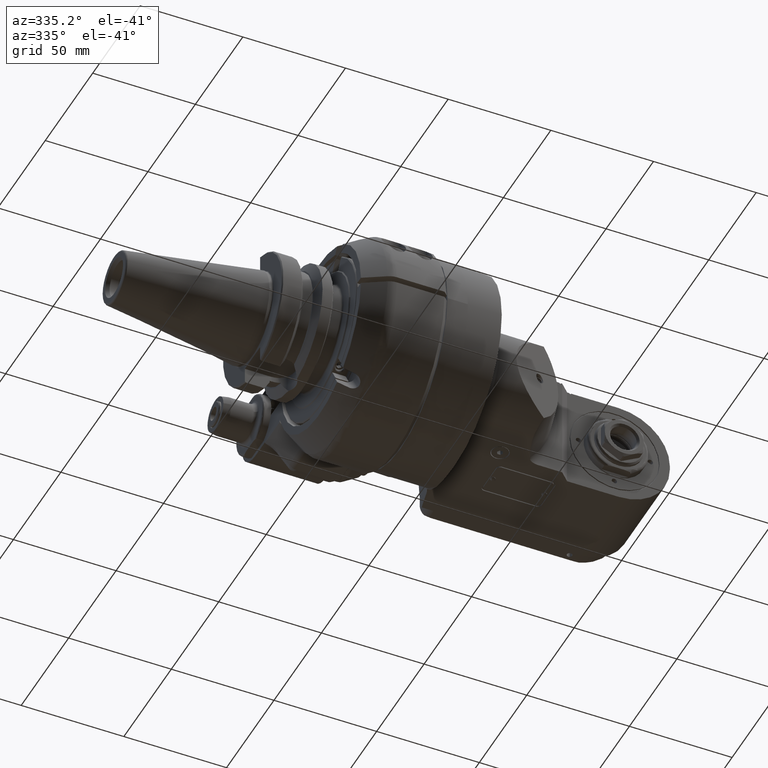
[diagram: clean part render]
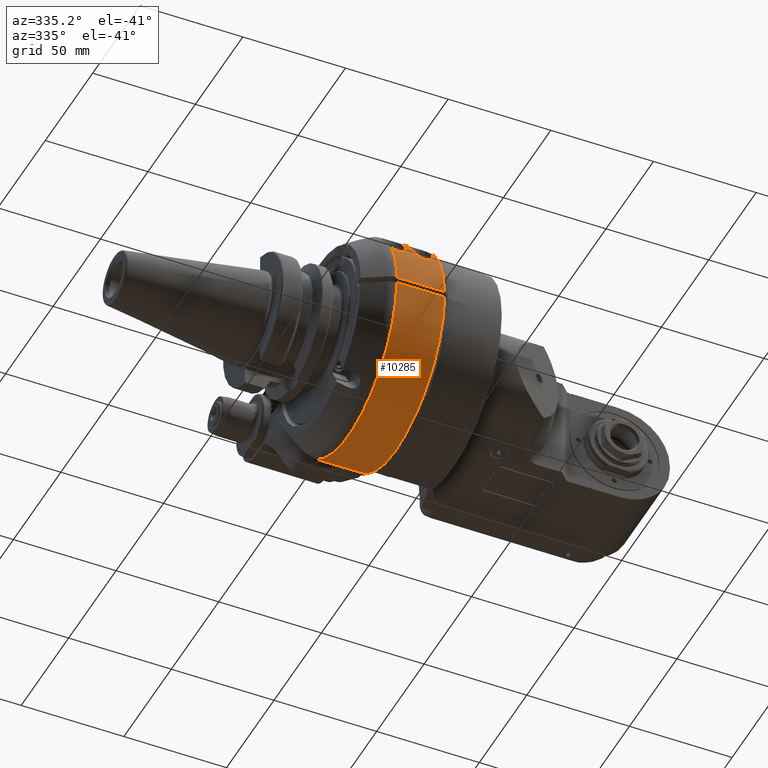
[diagram: same view with one face highlighted and labeled with its STEP entity id]
A machine part, auxiliary view. The second image highlights one B-rep face of the part: STEP entity #10285.
In plain terms, the highlighted cylindrical surface (partial cylindrical patch) has radius 51 mm, axis along (1, 0, 0).
Its self-contained STEP definition (entity closure, byte-faithful):
#73=B_SPLINE_CURVE_WITH_KNOTS('',3,(#16854,#16855,#16856,#16857,#16858,
#16859,#16860,#16861,#16862,#16863,#16864,#16865,#16866,#16867,#16868,#16869,
#16870,#16871),.UNSPECIFIED.,.F.,.F.,(4,2,2,2,2,2,2,2,4),(1.24497996375057,
1.57211089183856,1.89924181992655,2.10031433028339,2.30138684064023,2.50245935099707,
2.70353186135391,3.0306627894419,3.35779371752989),.UNSPECIFIED.);
#76=B_SPLINE_CURVE_WITH_KNOTS('',3,(#16949,#16950,#16951,#16952,#16953,
#16954),.UNSPECIFIED.,.F.,.F.,(4,2,4),(-0.351622839102922,-0.201072510356838,
0.),.UNSPECIFIED.);
#77=B_SPLINE_CURVE_WITH_KNOTS('',3,(#16956,#16957,#16958,#16959,#16960,
#16961,#16962,#16963,#16964,#16965,#16966,#16967,#16968,#16969,#16970,#16971,
#16972,#16973,#16974,#16975,#16976,#16977,#16978,#16979,#16980,#16981),
 .UNSPECIFIED.,.F.,.F.,(4,2,2,2,2,2,2,2,2,2,2,2,4),(0.,0.201072510356838,
0.402145020713677,0.729275948801668,1.05640687688966,1.45814522272358,1.85988356855749,
2.08063520459886,2.19101102261954,2.30138684064023,2.41176265866091,2.52213847668159,
2.7154535046118),.UNSPECIFIED.);
#78=B_SPLINE_CURVE_WITH_KNOTS('',3,(#16985,#16986,#16987,#16988,#16989,
#16990,#16991,#16992,#16993,#16994,#16995,#16996,#16997,#16998,#16999,#17000,
#17001,#17002,#17003,#17004,#17005,#17006,#17007),.UNSPECIFIED.,.F.,.F.,
(4,2,2,2,2,3,2,2,2,2,4),(-1.24497996375057,-0.843241617916652,-0.441503272082734,
-0.220751636041367,-0.110375818020684,0.,0.110375818020684,0.220751636041367,
0.441503272082734,0.843241617916652,1.24497996375057),.UNSPECIFIED.);
#272=FACE_BOUND('',#2313,.T.);
#421=CYLINDRICAL_SURFACE('',#11263,51.);
#770=CIRCLE('',#11264,51.);
#771=CIRCLE('',#11265,51.);
#772=CIRCLE('',#11266,51.);
#773=CIRCLE('',#11267,51.);
#774=CIRCLE('',#11268,51.);
#1603=FACE_OUTER_BOUND('',#2312,.T.);
#2312=EDGE_LOOP('',(#8220,#8221,#8222,#8223,#8224,#8225,#8226,#8227,#8228,
#8229,#8230));
#2313=EDGE_LOOP('',(#8231,#8232));
#3184=LINE('',#16892,#3899);
#3186=LINE('',#16896,#3901);
#3192=LINE('',#16943,#3907);
#3193=LINE('',#16984,#3908);
#3899=VECTOR('',#13349,20.23205080757);
#3901=VECTOR('',#13351,20.23205080757);
#3907=VECTOR('',#13363,23.23206191748);
#3908=VECTOR('',#13372,23.23206611221);
#4738=VERTEX_POINT('',#16850);
#4740=VERTEX_POINT('',#16853);
#4747=VERTEX_POINT('',#16890);
#4748=VERTEX_POINT('',#16891);
#4749=VERTEX_POINT('',#16893);
#4750=VERTEX_POINT('',#16895);
#4760=VERTEX_POINT('',#16939);
#4761=VERTEX_POINT('',#16940);
#4762=VERTEX_POINT('',#16942);
#4763=VERTEX_POINT('',#16946);
#4764=VERTEX_POINT('',#16948);
#4765=VERTEX_POINT('',#16955);
#4766=VERTEX_POINT('',#16982);
#5976=EDGE_CURVE('',#4740,#4738,#73,.T.);
#5986=EDGE_CURVE('',#4747,#4748,#3184,.T.);
#5988=EDGE_CURVE('',#4750,#4749,#3186,.T.);
#5999=EDGE_CURVE('',#4760,#4761,#770,.T.);
#6000=EDGE_CURVE('',#4760,#4762,#3192,.T.);
#6001=EDGE_CURVE('',#4750,#4762,#771,.T.);
#6002=EDGE_CURVE('',#4747,#4749,#772,.T.);
#6003=EDGE_CURVE('',#4763,#4748,#773,.T.);
#6004=EDGE_CURVE('',#4763,#4764,#76,.T.);
#6005=EDGE_CURVE('',#4764,#4765,#77,.T.);
#6006=EDGE_CURVE('',#4766,#4765,#774,.T.);
#6007=EDGE_CURVE('',#4766,#4761,#3193,.T.);
#6008=EDGE_CURVE('',#4738,#4740,#78,.T.);
#8220=ORIENTED_EDGE('',*,*,#5999,.F.);
#8221=ORIENTED_EDGE('',*,*,#6000,.T.);
#8222=ORIENTED_EDGE('',*,*,#6001,.F.);
#8223=ORIENTED_EDGE('',*,*,#5988,.T.);
#8224=ORIENTED_EDGE('',*,*,#6002,.F.);
#8225=ORIENTED_EDGE('',*,*,#5986,.T.);
#8226=ORIENTED_EDGE('',*,*,#6003,.F.);
#8227=ORIENTED_EDGE('',*,*,#6004,.T.);
#8228=ORIENTED_EDGE('',*,*,#6005,.T.);
#8229=ORIENTED_EDGE('',*,*,#6006,.F.);
#8230=ORIENTED_EDGE('',*,*,#6007,.T.);
#8231=ORIENTED_EDGE('',*,*,#6008,.T.);
#8232=ORIENTED_EDGE('',*,*,#5976,.T.);
#10285=ADVANCED_FACE('',(#1603,#272),#421,.T.);
#11263=AXIS2_PLACEMENT_3D('',#16938,#13359,#13360);
#11264=AXIS2_PLACEMENT_3D('',#16941,#13361,#13362);
#11265=AXIS2_PLACEMENT_3D('',#16944,#13364,#13365);
#11266=AXIS2_PLACEMENT_3D('',#16945,#13366,#13367);
#11267=AXIS2_PLACEMENT_3D('',#16947,#13368,#13369);
#11268=AXIS2_PLACEMENT_3D('',#16983,#13370,#13371);
#13349=DIRECTION('',(-1.,0.,0.));
#13351=DIRECTION('',(1.,0.,0.));
#13359=DIRECTION('center_axis',(1.,0.,0.));
#13360=DIRECTION('ref_axis',(0.,1.,1.05873409698834E-10));
#13361=DIRECTION('center_axis',(1.,0.,0.));
#13362=DIRECTION('ref_axis',(0.,1.,0.));
#13363=DIRECTION('',(-1.,-3.620724304585E-11,1.230523343791E-9));
#13364=DIRECTION('center_axis',(-1.,0.,0.));
#13365=DIRECTION('ref_axis',(0.,0.818627450980411,-0.574324904998308));
#13366=DIRECTION('center_axis',(-1.,0.,0.));
#13367=DIRECTION('ref_axis',(0.,1.,0.));
#13368=DIRECTION('center_axis',(-1.,0.,0.));
#13369=DIRECTION('ref_axis',(0.,-0.711205879844998,0.702983781088798));
#13370=DIRECTION('center_axis',(-1.,0.,0.));
#13371=DIRECTION('ref_axis',(0.,-0.999567380468613,0.0294117647058804));
#13372=DIRECTION('',(1.,4.9878538981E-11,1.695142412605E-9));
#16850=CARTESIAN_POINT('',(-15.5,-40.7216512827,30.70418728464));
#16853=CARTESIAN_POINT('',(-26.5,-40.7216512827,30.7041872846388));
#16854=CARTESIAN_POINT('Ctrl Pts',(-26.5,-40.7216512827,30.7041872846388));
#16855=CARTESIAN_POINT('Ctrl Pts',(-26.5,-40.0651617871045,31.5748612439451));
#16856=CARTESIAN_POINT('Ctrl Pts',(-26.3775309176086,-39.319256727814,32.5000944024137));
#16857=CARTESIAN_POINT('Ctrl Pts',(-25.7586754272403,-37.8511872002494,
34.1986505928683));
#16858=CARTESIAN_POINT('Ctrl Pts',(-25.2627488095064,-37.1297545962508,
34.9727734951554));
#16859=CARTESIAN_POINT('Ctrl Pts',(-24.149351972259,-36.1782586100401,35.9500095679527));
#16860=CARTESIAN_POINT('Ctrl Pts',(-23.6039156243507,-35.8317714924385,
36.2931969488346));
#16861=CARTESIAN_POINT('Ctrl Pts',(-22.364786222781,-35.3524177755747,36.760284817991));
#16862=CARTESIAN_POINT('Ctrl Pts',(-21.6702417011895,-35.2216512827,36.8840789626077));
#16863=CARTESIAN_POINT('Ctrl Pts',(-20.3297582988105,-35.2216512827,36.8840789626077));
#16864=CARTESIAN_POINT('Ctrl Pts',(-19.635213777219,-35.3524177755747,36.760284817991));
#16865=CARTESIAN_POINT('Ctrl Pts',(-18.3960843756493,-35.8317714924385,
36.2931969488346));
#16866=CARTESIAN_POINT('Ctrl Pts',(-17.850648027741,-36.1782586100401,35.9500095679527));
#16867=CARTESIAN_POINT('Ctrl Pts',(-16.7372511904936,-37.1297545962508,
34.9727734951554));
#16868=CARTESIAN_POINT('Ctrl Pts',(-16.2413245727597,-37.8511872002494,
34.1986505928683));
#16869=CARTESIAN_POINT('Ctrl Pts',(-15.6224690823914,-39.319256727814,32.5000944024137));
#16870=CARTESIAN_POINT('Ctrl Pts',(-15.5,-40.0651617871045,31.5748612439451));
#16871=CARTESIAN_POINT('Ctrl Pts',(-15.5,-40.7216512827,30.7041872846388));
#16890=CARTESIAN_POINT('',(-17.,41.75,29.29057015492));
#16891=CARTESIAN_POINT('',(-37.23205080757,41.75,29.29057015492));
#16892=CARTESIAN_POINT('',(-17.,41.75,29.29057015492));
#16893=CARTESIAN_POINT('',(-17.,41.75,-29.29057015492));
#16895=CARTESIAN_POINT('',(-37.23205080757,41.75,-29.29057015492));
#16896=CARTESIAN_POINT('',(-37.23205080757,41.75,-29.29057015492));
#16938=CARTESIAN_POINT('Origin',(-43.,0.,0.));
#16939=CARTESIAN_POINT('',(-14.,-50.9779364039,-1.5));
#16940=CARTESIAN_POINT('',(-14.,-50.9779364039,1.5));
#16941=CARTESIAN_POINT('Origin',(-14.,0.,0.));
#16942=CARTESIAN_POINT('',(-37.2320508150874,-50.9779364043201,-1.49999998570621));
#16943=CARTESIAN_POINT('',(-14.,-50.9779364039,-1.5));
#16944=CARTESIAN_POINT('Origin',(-37.23205080757,0.,0.));
#16945=CARTESIAN_POINT('Origin',(-17.,0.,0.));
#16946=CARTESIAN_POINT('',(-37.23205080757,-36.27149987209,35.85217283553));
#16947=CARTESIAN_POINT('Origin',(-37.23205080757,0.,0.));
#16948=CARTESIAN_POINT('',(-34.,-35.2216512827,36.8840789626077));
#16949=CARTESIAN_POINT('Ctrl Pts',(-37.2320508075659,-36.2714998720946,
35.8521728355289));
#16950=CARTESIAN_POINT('Ctrl Pts',(-36.872037357752,-36.0100297211167,36.116701141561));
#16951=CARTESIAN_POINT('Ctrl Pts',(-36.44824163253,-35.7715494474255,36.3518780139684));
#16952=CARTESIAN_POINT('Ctrl Pts',(-35.364786222781,-35.3524177755747,36.760284817991));
#16953=CARTESIAN_POINT('Ctrl Pts',(-34.6702417011895,-35.2216512827,36.8840789626077));
#16954=CARTESIAN_POINT('Ctrl Pts',(-34.,-35.2216512827,36.8840789626077));
#16955=CARTESIAN_POINT('',(-37.23205080757,-45.1718026933,23.67505525733));
#16956=CARTESIAN_POINT('Ctrl Pts',(-34.,-35.2216512827,36.8840789626077));
#16957=CARTESIAN_POINT('Ctrl Pts',(-33.3297582988105,-35.2216512827,36.8840789626077));
#16958=CARTESIAN_POINT('Ctrl Pts',(-32.635213777219,-35.3524177755747,36.760284817991));
#16959=CARTESIAN_POINT('Ctrl Pts',(-31.3960843756493,-35.8317714924385,
36.2931969488346));
#16960=CARTESIAN_POINT('Ctrl Pts',(-30.850648027741,-36.1782586100401,35.9500095679527));
#16961=CARTESIAN_POINT('Ctrl Pts',(-29.7372511904936,-37.1297545962508,
34.9727734951554));
#16962=CARTESIAN_POINT('Ctrl Pts',(-29.2413245727597,-37.8511872002494,
34.1986505928683));
#16963=CARTESIAN_POINT('Ctrl Pts',(-28.6224690823914,-39.319256727814,32.5000944024137));
#16964=CARTESIAN_POINT('Ctrl Pts',(-28.5,-40.0651617871045,31.5748612439451));
#16965=CARTESIAN_POINT('Ctrl Pts',(-28.5,-41.5278636624324,29.6349422633357));
#16966=CARTESIAN_POINT('Ctrl Pts',(-28.6828935944427,-42.355228362554,28.4428786872814));
#16967=CARTESIAN_POINT('Ctrl Pts',(-29.4026147018995,-43.8528254301532,
26.0747465478085));
#16968=CARTESIAN_POINT('Ctrl Pts',(-29.9314939989374,-44.5246315328702,
24.8972647332227));
#16969=CARTESIAN_POINT('Ctrl Pts',(-31.001270294294,-45.3572445916551,23.326334884601));
#16970=CARTESIAN_POINT('Ctrl Pts',(-31.480842706606,-45.6482368635351,22.7481982089167));
#16971=CARTESIAN_POINT('Ctrl Pts',(-32.3308258147761,-45.9710043968678,
22.0845481334827));
#16972=CARTESIAN_POINT('Ctrl Pts',(-32.6354867073276,-46.0599916909384,
21.8974583438779));
#16973=CARTESIAN_POINT('Ctrl Pts',(-33.286197560497,-46.1851905126261,21.6321449190877));
#16974=CARTESIAN_POINT('Ctrl Pts',(-33.6320806065977,-46.2216512827,21.5536296873747));
#16975=CARTESIAN_POINT('Ctrl Pts',(-34.3679193934023,-46.2216512827,21.5536296873747));
#16976=CARTESIAN_POINT('Ctrl Pts',(-34.713802439503,-46.1851905126261,21.6321449190877));
#16977=CARTESIAN_POINT('Ctrl Pts',(-35.3645132926724,-46.0599916909384,
21.8974583438779));
#16978=CARTESIAN_POINT('Ctrl Pts',(-35.6691741852239,-45.9710043968678,
22.0845481334827));
#16979=CARTESIAN_POINT('Ctrl Pts',(-36.4487292658961,-45.6749807840842,
22.6932093917128));
#16980=CARTESIAN_POINT('Ctrl Pts',(-36.8782785168307,-45.4287400225037,
23.1848210334514));
#16981=CARTESIAN_POINT('Ctrl Pts',(-37.2320508075737,-45.1718026932997,
23.6750552573295));
#16982=CARTESIAN_POINT('',(-37.2320508231036,-50.9779364044793,1.499999980309));
#16983=CARTESIAN_POINT('Origin',(-37.23205080757,0.,0.));
#16984=CARTESIAN_POINT('',(-37.23206611221,-50.97793640506,1.499999960618));
#16985=CARTESIAN_POINT('Ctrl Pts',(-15.5,-40.7216512827,30.7041872846388));
#16986=CARTESIAN_POINT('Ctrl Pts',(-15.5,-41.5278636624324,29.6349422633357));
#16987=CARTESIAN_POINT('Ctrl Pts',(-15.6828935944427,-42.355228362554,28.4428786872814));
#16988=CARTESIAN_POINT('Ctrl Pts',(-16.4026147018995,-43.8528254301532,
26.0747465478085));
#16989=CARTESIAN_POINT('Ctrl Pts',(-16.9314939989374,-44.5246315328702,
24.8972647332227));
#16990=CARTESIAN_POINT('Ctrl Pts',(-18.001270294294,-45.3572445916551,23.326334884601));
#16991=CARTESIAN_POINT('Ctrl Pts',(-18.480842706606,-45.6482368635351,22.7481982089167));
#16992=CARTESIAN_POINT('Ctrl Pts',(-19.3308258147761,-45.9710043968678,
22.0845481334827));
#16993=CARTESIAN_POINT('Ctrl Pts',(-19.6354867073276,-46.0599916909384,
21.8974583438779));
#16994=CARTESIAN_POINT('Ctrl Pts',(-20.286197560497,-46.1851905126261,21.6321449190877));
#16995=CARTESIAN_POINT('Ctrl Pts',(-20.6320806065977,-46.2216512827,21.5536296873747));
#16996=CARTESIAN_POINT('Ctrl Pts',(-21.,-46.2216512827,21.5536296873747));
#16997=CARTESIAN_POINT('Ctrl Pts',(-21.3679193934023,-46.2216512827,21.5536296873747));
#16998=CARTESIAN_POINT('Ctrl Pts',(-21.713802439503,-46.1851905126261,21.6321449190877));
#16999=CARTESIAN_POINT('Ctrl Pts',(-22.3645132926724,-46.0599916909384,
21.8974583438779));
#17000=CARTESIAN_POINT('Ctrl Pts',(-22.6691741852239,-45.9710043968678,
22.0845481334827));
#17001=CARTESIAN_POINT('Ctrl Pts',(-23.519157293394,-45.6482368635351,22.7481982089167));
#17002=CARTESIAN_POINT('Ctrl Pts',(-23.998729705706,-45.3572445916551,23.326334884601));
#17003=CARTESIAN_POINT('Ctrl Pts',(-25.0685060010626,-44.5246315328702,
24.8972647332227));
#17004=CARTESIAN_POINT('Ctrl Pts',(-25.5973852981005,-43.8528254301532,
26.0747465478085));
#17005=CARTESIAN_POINT('Ctrl Pts',(-26.3171064055573,-42.355228362554,28.4428786872814));
#17006=CARTESIAN_POINT('Ctrl Pts',(-26.5,-41.5278636624324,29.6349422633357));
#17007=CARTESIAN_POINT('Ctrl Pts',(-26.5,-40.7216512827,30.7041872846388));